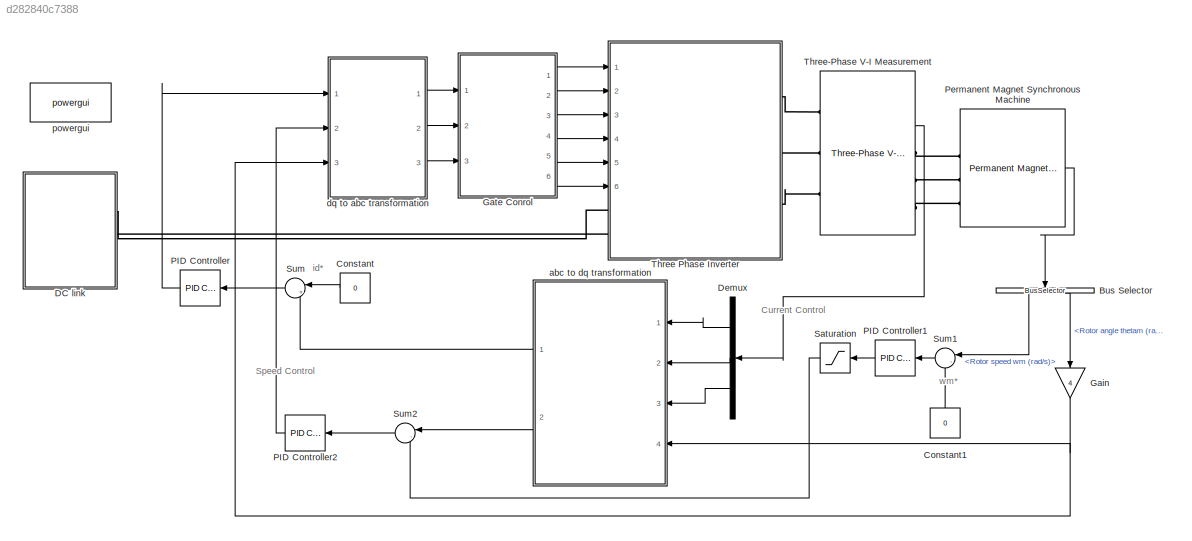
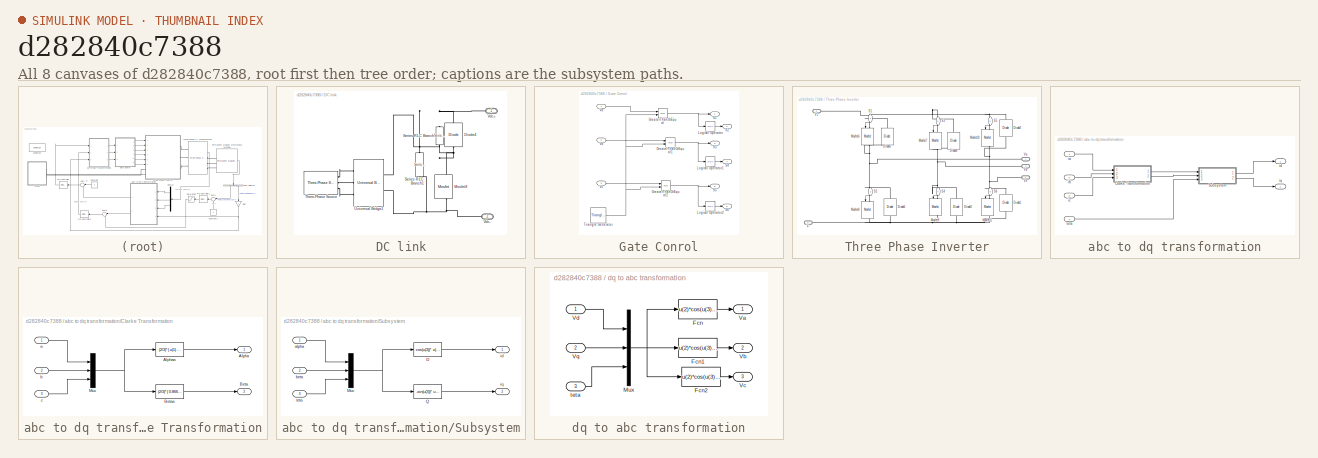
[diagram: thumbnail index - all 8 canvases of the model, root first then tree order]
MODEL slx_d282840c7388
KIND model
CONFIG AbsTol = auto
CONFIG EnableMultiTasking = off
CONFIG FixedStep = auto
CONFIG MaxStep = auto
CONFIG MinStep = auto
CONFIG RelTol = 1e-3
CONFIG SampleTimeConstraint = Unconstrained
CONFIG Solver = VariableStepAuto
CONFIG SolverName = VariableStepAuto
CONFIG StartTime = 0.0
CONFIG StopTime = 10.0
BLOCK [BusSelector] Bus Selector
  OutputAsBus = off
  OutputSignals = Rotor speed wm (rad/s),Rotor angle thetam (rad)
  Ports = [1, 2]
BLOCK [Constant] Constant
  Value = 0
BLOCK [Constant] Constant1
  Value = 0
BLOCK [SubSystem] DC link
  Ports = [0, 0, 0, 0, 0, 0, 2]
  RequestExecContextInheritance = off
BLOCK [Reference] DC link/Diode4  REF=powerlib/Power
Electronics/Diode
  Ports = [0, 0, 0, 0, 0, 1, 1]
  SourceBlock = powerlib/Power\nElectronics/Diode
  SourceProductBaseCode = PS
  SourceProductName = Simscape Power Systems
  SourceType = Diode
BLOCK [Reference] DC link/Mosfet9  REF=powerlib/Power
Electronics/Mosfet
  Ports = [1, 1, 0, 0, 0, 1, 1]
  SourceBlock = powerlib/Power\nElectronics/Mosfet
  SourceProductBaseCode = PS
  SourceProductName = Simscape Power Systems
  SourceType = Mosfet
BLOCK [Reference] DC link/Series RLC Branch  REF=powerlib/Elements/Series RLC Branch
  Ports = [0, 0, 0, 0, 0, 1, 1]
  SourceBlock = powerlib/Elements/Series RLC Branch
  SourceProductBaseCode = PS
  SourceProductName = Simscape Power Systems
  SourceType = Series RLC Branch
BLOCK [Reference] DC link/Series RLC Branch1  REF=powerlib/Elements/Series RLC Branch
  Ports = [0, 0, 0, 0, 0, 1, 1]
  SourceBlock = powerlib/Elements/Series RLC Branch
  SourceProductBaseCode = PS
  SourceProductName = Simscape Power Systems
  SourceType = Series RLC Branch
BLOCK [Reference] DC link/Three-Phase Source  REF=powerlib/Electrical
Sources/Three-Phase Source
  Ports = [0, 0, 0, 0, 0, 0, 3]
  SourceBlock = powerlib/Electrical\nSources/Three-Phase Source
  SourceProductBaseCode = PS
  SourceProductName = Simscape Power Systems
  SourceType = Three-Phase Source
BLOCK [Reference] DC link/Universal Bridge1  REF=powerlib/Power
Electronics/Universal Bridge
  Ports = [0, 0, 0, 0, 0, 3, 2]
  SourceBlock = powerlib/Power\nElectronics/Universal Bridge
  SourceProductBaseCode = PS
  SourceProductName = Simscape Power Systems
  SourceType = Universal Bridge
BLOCK [PMIOPort] DC link/Vdc+
  Side = Right
BLOCK [PMIOPort] DC link/Vdc-
  Port = 2
  Side = Right
BLOCK [Demux] Demux
  DisplayOption = bar
  Outputs = 3
  Ports = [1, 3]
BLOCK [Gain] Gain
  Gain = 4
  OutDataTypeStr = Inherit: Inherit via internal rule
  ParamDataTypeStr = Inherit: Inherit via internal rule
  SaturateOnIntegerOverflow = off
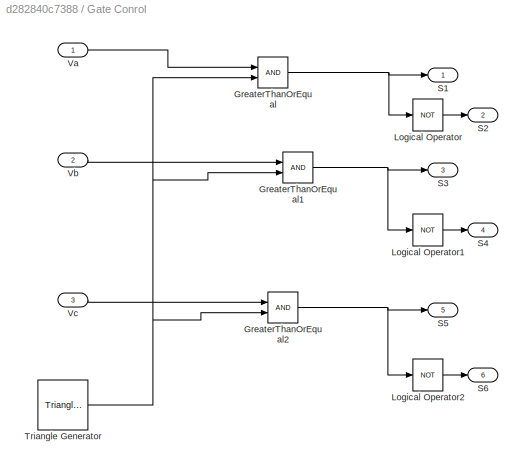
BLOCK [SubSystem] Gate Conrol
  Ports = [3, 6]
  RequestExecContextInheritance = off
BLOCK [RelationalOperator] Gate Conrol/GreaterThanOrEqual
  InputSameDT = off
  OutDataTypeStr = boolean
  Ports = [2, 1]
  RndMeth = Simplest
BLOCK [RelationalOperator] Gate Conrol/GreaterThanOrEqual1
  InputSameDT = off
  OutDataTypeStr = boolean
  Ports = [2, 1]
  RndMeth = Simplest
BLOCK [RelationalOperator] Gate Conrol/GreaterThanOrEqual2
  InputSameDT = off
  OutDataTypeStr = boolean
  Ports = [2, 1]
  RndMeth = Simplest
BLOCK [Logic] Gate Conrol/Logical Operator
  AllPortsSameDT = off
  Operator = NOT
  OutDataTypeStr = boolean
  Ports = [1, 1]
BLOCK [Logic] Gate Conrol/Logical Operator1
  AllPortsSameDT = off
  Operator = NOT
  OutDataTypeStr = boolean
  Ports = [1, 1]
BLOCK [Logic] Gate Conrol/Logical Operator2
  AllPortsSameDT = off
  Operator = NOT
  OutDataTypeStr = boolean
  Ports = [1, 1]
BLOCK [Outport] Gate Conrol/S1
  IconDisplay = Port number
BLOCK [Outport] Gate Conrol/S2
  IconDisplay = Port number
  Port = 2
BLOCK [Outport] Gate Conrol/S3
  IconDisplay = Port number
  Port = 3
BLOCK [Outport] Gate Conrol/S4
  IconDisplay = Port number
  Port = 4
BLOCK [Outport] Gate Conrol/S5
  IconDisplay = Port number
  Port = 5
BLOCK [Outport] Gate Conrol/S6
  IconDisplay = Port number
  Port = 6
BLOCK [Reference] Gate Conrol/Triangle Generator  REF=powerlib_meascontrol/Pulse & Signal
Generators/Triangle
Generator
  Ports = [0, 1]
  SourceBlock = powerlib_meascontrol/Pulse & Signal\nGenerators/Triangle\nGenerator
  SourceProductBaseCode = PS
  SourceProductName = Simscape Power Systems
  SourceType = Triangle Generator
BLOCK [Inport] Gate Conrol/Va
  IconDisplay = Port number
BLOCK [Inport] Gate Conrol/Vb
  IconDisplay = Port number
  Port = 2
BLOCK [Inport] Gate Conrol/Vc
  IconDisplay = Port number
  Port = 3
BLOCK [Reference] PID Controller  REF=simulink/Continuous/PID Controller
  Ports = [1, 1]
  SourceBlock = simulink/Continuous/PID Controller
  SourceProductBaseCode = SL
  SourceProductName = Simulink
  SourceType = PID 1dof
BLOCK [Reference] PID Controller1  REF=simulink/Continuous/PID Controller
  Ports = [1, 1]
  SourceBlock = simulink/Continuous/PID Controller
  SourceProductBaseCode = SL
  SourceProductName = Simulink
  SourceType = PID 1dof
BLOCK [Reference] PID Controller2  REF=simulink/Continuous/PID Controller
  Ports = [1, 1]
  SourceBlock = simulink/Continuous/PID Controller
  SourceProductBaseCode = SL
  SourceProductName = Simulink
  SourceType = PID 1dof
BLOCK [Reference] Permanent Magnet Synchronous Machine  REF=powerlib/Machines/Permanent Magnet
Synchronous Machine
  Ports = [1, 1, 0, 0, 0, 3]
  SourceBlock = powerlib/Machines/Permanent Magnet\nSynchronous Machine
  SourceProductBaseCode = PS
  SourceProductName = Simscape Power Systems
  SourceType = Permanent Magnet Synchronous Machine
BLOCK [Saturate] Saturation
  InputPortMap = u0
  LowerLimit = -250
  Ports = [1, 1]
  UpperLimit = 250
BLOCK [Sum] Sum
  IconShape = round
  InputSameDT = off
  Inputs = |+-
  OutDataTypeStr = Inherit: Inherit via internal rule
  Ports = [2, 1]
  SaturateOnIntegerOverflow = off
BLOCK [Sum] Sum1
  IconShape = round
  InputSameDT = off
  Inputs = |-+
  OutDataTypeStr = Inherit: Inherit via internal rule
  Ports = [2, 1]
  SaturateOnIntegerOverflow = off
BLOCK [Sum] Sum2
  IconShape = round
  InputSameDT = off
  Inputs = |-+
  OutDataTypeStr = Inherit: Inherit via internal rule
  Ports = [2, 1]
  SaturateOnIntegerOverflow = off
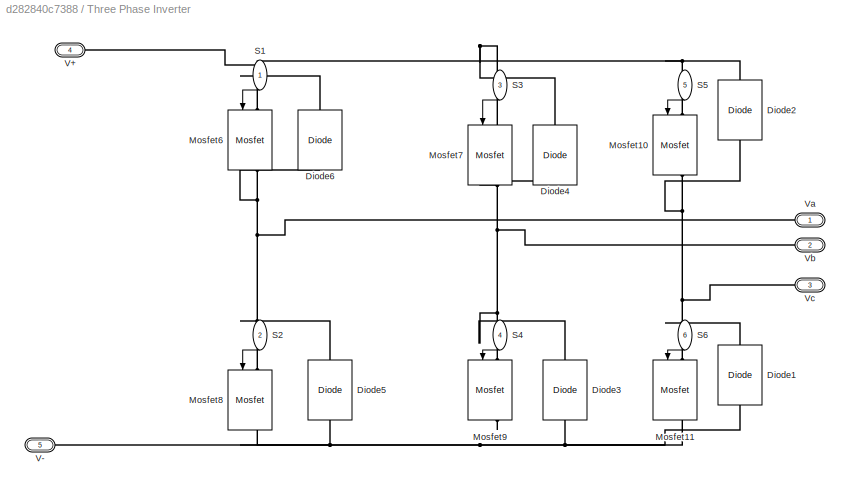
BLOCK [SubSystem] Three Phase Inverter
  Ports = [6, 0, 0, 0, 0, 2, 3]
  RequestExecContextInheritance = off
BLOCK [Reference] Three Phase Inverter/Diode1  REF=powerlib/Power
Electronics/Diode
  Ports = [0, 0, 0, 0, 0, 1, 1]
  SourceBlock = powerlib/Power\nElectronics/Diode
  SourceProductBaseCode = PS
  SourceProductName = Simscape Power Systems
  SourceType = Diode
BLOCK [Reference] Three Phase Inverter/Diode2  REF=powerlib/Power
Electronics/Diode
  Ports = [0, 0, 0, 0, 0, 1, 1]
  SourceBlock = powerlib/Power\nElectronics/Diode
  SourceProductBaseCode = PS
  SourceProductName = Simscape Power Systems
  SourceType = Diode
BLOCK [Reference] Three Phase Inverter/Diode3  REF=powerlib/Power
Electronics/Diode
  Ports = [0, 0, 0, 0, 0, 1, 1]
  SourceBlock = powerlib/Power\nElectronics/Diode
  SourceProductBaseCode = PS
  SourceProductName = Simscape Power Systems
  SourceType = Diode
BLOCK [Reference] Three Phase Inverter/Diode4  REF=powerlib/Power
Electronics/Diode
  Ports = [0, 0, 0, 0, 0, 1, 1]
  SourceBlock = powerlib/Power\nElectronics/Diode
  SourceProductBaseCode = PS
  SourceProductName = Simscape Power Systems
  SourceType = Diode
BLOCK [Reference] Three Phase Inverter/Diode5  REF=powerlib/Power
Electronics/Diode
  Ports = [0, 0, 0, 0, 0, 1, 1]
  SourceBlock = powerlib/Power\nElectronics/Diode
  SourceProductBaseCode = PS
  SourceProductName = Simscape Power Systems
  SourceType = Diode
BLOCK [Reference] Three Phase Inverter/Diode6  REF=powerlib/Power
Electronics/Diode
  Ports = [0, 0, 0, 0, 0, 1, 1]
  SourceBlock = powerlib/Power\nElectronics/Diode
  SourceProductBaseCode = PS
  SourceProductName = Simscape Power Systems
  SourceType = Diode
BLOCK [Reference] Three Phase Inverter/Mosfet10  REF=powerlib/Power
Electronics/Mosfet
  Ports = [1, 1, 0, 0, 0, 1, 1]
  SourceBlock = powerlib/Power\nElectronics/Mosfet
  SourceProductBaseCode = PS
  SourceProductName = Simscape Power Systems
  SourceType = Mosfet
BLOCK [Reference] Three Phase Inverter/Mosfet11  REF=powerlib/Power
Electronics/Mosfet
  Ports = [1, 1, 0, 0, 0, 1, 1]
  SourceBlock = powerlib/Power\nElectronics/Mosfet
  SourceProductBaseCode = PS
  SourceProductName = Simscape Power Systems
  SourceType = Mosfet
BLOCK [Reference] Three Phase Inverter/Mosfet6  REF=powerlib/Power
Electronics/Mosfet
  Ports = [1, 1, 0, 0, 0, 1, 1]
  SourceBlock = powerlib/Power\nElectronics/Mosfet
  SourceProductBaseCode = PS
  SourceProductName = Simscape Power Systems
  SourceType = Mosfet
BLOCK [Reference] Three Phase Inverter/Mosfet7  REF=powerlib/Power
Electronics/Mosfet
  Ports = [1, 1, 0, 0, 0, 1, 1]
  SourceBlock = powerlib/Power\nElectronics/Mosfet
  SourceProductBaseCode = PS
  SourceProductName = Simscape Power Systems
  SourceType = Mosfet
BLOCK [Reference] Three Phase Inverter/Mosfet8  REF=powerlib/Power
Electronics/Mosfet
  Ports = [1, 1, 0, 0, 0, 1, 1]
  SourceBlock = powerlib/Power\nElectronics/Mosfet
  SourceProductBaseCode = PS
  SourceProductName = Simscape Power Systems
  SourceType = Mosfet
BLOCK [Reference] Three Phase Inverter/Mosfet9  REF=powerlib/Power
Electronics/Mosfet
  Ports = [1, 1, 0, 0, 0, 1, 1]
  SourceBlock = powerlib/Power\nElectronics/Mosfet
  SourceProductBaseCode = PS
  SourceProductName = Simscape Power Systems
  SourceType = Mosfet
BLOCK [Inport] Three Phase Inverter/S1
  IconDisplay = Port number
BLOCK [Inport] Three Phase Inverter/S2
  IconDisplay = Port number
  Port = 2
BLOCK [Inport] Three Phase Inverter/S3
  IconDisplay = Port number
  Port = 3
BLOCK [Inport] Three Phase Inverter/S4
  IconDisplay = Port number
  Port = 4
BLOCK [Inport] Three Phase Inverter/S5
  IconDisplay = Port number
  Port = 5
BLOCK [Inport] Three Phase Inverter/S6
  IconDisplay = Port number
  Port = 6
BLOCK [PMIOPort] Three Phase Inverter/V+
  Port = 4
  Side = Left
BLOCK [PMIOPort] Three Phase Inverter/V-
  Port = 5
  Side = Left
BLOCK [PMIOPort] Three Phase Inverter/Va
  Side = Right
BLOCK [PMIOPort] Three Phase Inverter/Vb
  Port = 2
  Side = Right
BLOCK [PMIOPort] Three Phase Inverter/Vc
  Port = 3
  Side = Right
BLOCK [Reference] Three-Phase V-I Measurement  REF=powerlib/Measurements/Three-Phase
V-I Measurement
  Ports = [0, 2, 0, 0, 0, 3, 3]
  SourceBlock = powerlib/Measurements/Three-Phase\nV-I Measurement
  SourceProductBaseCode = PS
  SourceProductName = Simscape Power Systems
  SourceType = Three-Phase VI Measurement
BLOCK [SubSystem] abc to dq transformation
  Ports = [4, 2]
  RequestExecContextInheritance = off
BLOCK [SubSystem] abc to dq transformation/Clarke Transformation
  Ports = [3, 2]
  RequestExecContextInheritance = off
BLOCK [Outport] abc to dq transformation/Clarke Transformation/Alpha
  IconDisplay = Port number
BLOCK [Fcn] abc to dq transformation/Clarke Transformation/Alphaa
  Expr = (2/3)*( u(1) -0.5*u(2) - 0.5*u(3))
BLOCK [Outport] abc to dq transformation/Clarke Transformation/Beta
  IconDisplay = Port number
  Port = 2
BLOCK [Fcn] abc to dq transformation/Clarke Transformation/Betaa
  Expr = (2/3)*( 0.866*u(2) - 0.866*u(3))
BLOCK [Mux] abc to dq transformation/Clarke Transformation/Mux
  DisplayOption = bar
  Inputs = 3
  Ports = [3, 1]
BLOCK [Inport] abc to dq transformation/Clarke Transformation/a
  IconDisplay = Port number
BLOCK [Inport] abc to dq transformation/Clarke Transformation/b
  IconDisplay = Port number
  Port = 2
BLOCK [Inport] abc to dq transformation/Clarke Transformation/c
  IconDisplay = Port number
  Port = 3
BLOCK [SubSystem] abc to dq transformation/Subsystem
  Ports = [3, 2]
  RequestExecContextInheritance = off
BLOCK [Fcn] abc to dq transformation/Subsystem/D
  Expr = cos(u(3))* u(1) + sin(u(3))* u(2)
BLOCK [Mux] abc to dq transformation/Subsystem/Mux
  DisplayOption = bar
  Inputs = 3
  Ports = [3, 1]
BLOCK [Fcn] abc to dq transformation/Subsystem/Q
  Expr = -sin(u(3))* u(1) + cos(u(3))* u(2)
BLOCK [Inport] abc to dq transformation/Subsystem/alpha
  IconDisplay = Port number
BLOCK [Inport] abc to dq transformation/Subsystem/beta
  IconDisplay = Port number
  Port = 2
BLOCK [Outport] abc to dq transformation/Subsystem/id
  IconDisplay = Port number
BLOCK [Outport] abc to dq transformation/Subsystem/iq
  IconDisplay = Port number
  Port = 2
BLOCK [Inport] abc to dq transformation/Subsystem/teta
  IconDisplay = Port number
  Port = 3
BLOCK [Inport] abc to dq transformation/ia
  IconDisplay = Port number
BLOCK [Inport] abc to dq transformation/ib
  IconDisplay = Port number
  Port = 2
BLOCK [Inport] abc to dq transformation/ic
  IconDisplay = Port number
  Port = 3
BLOCK [Outport] abc to dq transformation/id
  IconDisplay = Port number
BLOCK [Outport] abc to dq transformation/iq
  IconDisplay = Port number
  Port = 2
BLOCK [Inport] abc to dq transformation/teta
  IconDisplay = Port number
  Port = 4
BLOCK [SubSystem] dq to abc transformation
  Ports = [3, 3]
  RequestExecContextInheritance = off
BLOCK [Fcn] dq to abc transformation/Fcn
  Expr = u(2)*cos(u(3))-u(1)*sin(u(3))
BLOCK [Fcn] dq to abc transformation/Fcn1
  Expr = u(2)*cos(u(3)-2*pi/3)-u(1)*sin(u(3)-2*pi/3)
BLOCK [Fcn] dq to abc transformation/Fcn2
  Expr = u(2)*cos(u(3)+2*pi/3)-u(1)*sin(u(3)+2*pi/3)
BLOCK [Mux] dq to abc transformation/Mux
  DisplayOption = bar
  Inputs = 3
  Ports = [3, 1]
BLOCK [Outport] dq to abc transformation/Va
  IconDisplay = Port number
BLOCK [Outport] dq to abc transformation/Vb
  IconDisplay = Port number
  Port = 2
BLOCK [Outport] dq to abc transformation/Vc
  IconDisplay = Port number
  Port = 3
BLOCK [Inport] dq to abc transformation/Vd
  IconDisplay = Port number
BLOCK [Inport] dq to abc transformation/Vq
  IconDisplay = Port number
  Port = 2
BLOCK [Inport] dq to abc transformation/teta 
  IconDisplay = Port number
  Port = 3
BLOCK [Reference] powergui  REF=powerlib/powergui
  Ports = []
  Priority = 1
  SourceBlock = powerlib/powergui
  SourceProductBaseCode = PS
  SourceProductName = Simscape Power Systems
  SourceType = PSB option menu block
ANNOTATION (root): Current Control
ANNOTATION (root): Speed Control
ANNOTATION (root): id*
ANNOTATION (root): wm*
LINE Bus Selector:1 -> Sum1:1
LINE Bus Selector:2 -> Gain:1
LINE Constant1:1 -> Sum1:2
LINE Constant:1 -> Sum:1
LINE Demux:1 -> abc to dq transformation:1
LINE Demux:2 -> abc to dq transformation:2
LINE Demux:3 -> abc to dq transformation:3
NET Gain:1 -> abc to dq transformation:4, dq to abc transformation:3
NET Gate Conrol/GreaterThanOrEqual1:1 -> Gate Conrol/Logical Operator1:1, Gate Conrol/S3:1
NET Gate Conrol/GreaterThanOrEqual2:1 -> Gate Conrol/Logical Operator2:1, Gate Conrol/S5:1
NET Gate Conrol/GreaterThanOrEqual:1 -> Gate Conrol/Logical Operator:1, Gate Conrol/S1:1
LINE Gate Conrol/Logical Operator1:1 -> Gate Conrol/S4:1
LINE Gate Conrol/Logical Operator2:1 -> Gate Conrol/S6:1
LINE Gate Conrol/Logical Operator:1 -> Gate Conrol/S2:1
NET Gate Conrol/Triangle Generator:1 -> Gate Conrol/GreaterThanOrEqual1:2, Gate Conrol/GreaterThanOrEqual2:2, Gate Conrol/GreaterThanOrEqual:2
LINE Gate Conrol/Va:1 -> Gate Conrol/GreaterThanOrEqual:1
LINE Gate Conrol/Vb:1 -> Gate Conrol/GreaterThanOrEqual1:1
LINE Gate Conrol/Vc:1 -> Gate Conrol/GreaterThanOrEqual2:1
LINE Gate Conrol:1 -> Three Phase Inverter:1
LINE Gate Conrol:2 -> Three Phase Inverter:2
LINE Gate Conrol:3 -> Three Phase Inverter:3
LINE Gate Conrol:4 -> Three Phase Inverter:4
LINE Gate Conrol:5 -> Three Phase Inverter:5
LINE Gate Conrol:6 -> Three Phase Inverter:6
LINE PID Controller1:1 -> Saturation:1
LINE PID Controller2:1 -> dq to abc transformation:2
LINE PID Controller:1 -> dq to abc transformation:1
LINE Permanent Magnet Synchronous Machine:1 -> Bus Selector:1
LINE Saturation:1 -> Sum2:2
LINE Sum1:1 -> PID Controller1:1
LINE Sum2:1 -> PID Controller2:1
LINE Sum:1 -> PID Controller:1
LINE Three Phase Inverter/S1:1 -> Three Phase Inverter/Mosfet6:1
LINE Three Phase Inverter/S2:1 -> Three Phase Inverter/Mosfet8:1
LINE Three Phase Inverter/S3:1 -> Three Phase Inverter/Mosfet7:1
LINE Three Phase Inverter/S4:1 -> Three Phase Inverter/Mosfet9:1
LINE Three Phase Inverter/S5:1 -> Three Phase Inverter/Mosfet10:1
LINE Three Phase Inverter/S6:1 -> Three Phase Inverter/Mosfet11:1
LINE Three-Phase V-I Measurement:2 -> Demux:1
LINE abc to dq transformation/Clarke Transformation/Alphaa:1 -> abc to dq transformation/Clarke Transformation/Alpha:1
LINE abc to dq transformation/Clarke Transformation/Betaa:1 -> abc to dq transformation/Clarke Transformation/Beta:1
NET abc to dq transformation/Clarke Transformation/Mux:1 -> abc to dq transformation/Clarke Transformation/Alphaa:1, abc to dq transformation/Clarke Transformation/Betaa:1
LINE abc to dq transformation/Clarke Transformation/a:1 -> abc to dq transformation/Clarke Transformation/Mux:1
LINE abc to dq transformation/Clarke Transformation/b:1 -> abc to dq transformation/Clarke Transformation/Mux:2
LINE abc to dq transformation/Clarke Transformation/c:1 -> abc to dq transformation/Clarke Transformation/Mux:3
LINE abc to dq transformation/Clarke Transformation:1 -> abc to dq transformation/Subsystem:1
LINE abc to dq transformation/Clarke Transformation:2 -> abc to dq transformation/Subsystem:2
LINE abc to dq transformation/Subsystem/D:1 -> abc to dq transformation/Subsystem/id:1
NET abc to dq transformation/Subsystem/Mux:1 -> abc to dq transformation/Subsystem/D:1, abc to dq transformation/Subsystem/Q:1
LINE abc to dq transformation/Subsystem/Q:1 -> abc to dq transformation/Subsystem/iq:1
LINE abc to dq transformation/Subsystem/alpha:1 -> abc to dq transformation/Subsystem/Mux:1
LINE abc to dq transformation/Subsystem/beta:1 -> abc to dq transformation/Subsystem/Mux:2
LINE abc to dq transformation/Subsystem/teta:1 -> abc to dq transformation/Subsystem/Mux:3
LINE abc to dq transformation/Subsystem:1 -> abc to dq transformation/id:1
LINE abc to dq transformation/Subsystem:2 -> abc to dq transformation/iq:1
LINE abc to dq transformation/ia:1 -> abc to dq transformation/Clarke Transformation:1
LINE abc to dq transformation/ib:1 -> abc to dq transformation/Clarke Transformation:2
LINE abc to dq transformation/ic:1 -> abc to dq transformation/Clarke Transformation:3
LINE abc to dq transformation/teta:1 -> abc to dq transformation/Subsystem:3
LINE abc to dq transformation:1 -> Sum:2
LINE abc to dq transformation:2 -> Sum2:1
LINE dq to abc transformation/Fcn1:1 -> dq to abc transformation/Vb:1
LINE dq to abc transformation/Fcn2:1 -> dq to abc transformation/Vc:1
LINE dq to abc transformation/Fcn:1 -> dq to abc transformation/Va:1
NET dq to abc transformation/Mux:1 -> dq to abc transformation/Fcn1:1, dq to abc transformation/Fcn2:1, dq to abc transformation/Fcn:1
LINE dq to abc transformation/Vd:1 -> dq to abc transformation/Mux:1
LINE dq to abc transformation/Vq:1 -> dq to abc transformation/Mux:2
LINE dq to abc transformation/teta :1 -> dq to abc transformation/Mux:3
LINE dq to abc transformation:1 -> Gate Conrol:1
LINE dq to abc transformation:2 -> Gate Conrol:2
LINE dq to abc transformation:3 -> Gate Conrol:3
PNET net1: DC link/Diode4:LConn1 -- DC link/Mosfet9:LConn1 -- DC link/Series RLC Branch:RConn1
PNET net2: DC link/Diode4:RConn1 -- DC link/Series RLC Branch1:LConn1 -- DC link/Series RLC Branch:LConn1 -- DC link/Universal Bridge1:RConn1 -- DC link/Vdc+:RConn1
PNET net3: DC link/Mosfet9:RConn1 -- DC link/Series RLC Branch1:RConn1 -- DC link/Universal Bridge1:RConn2 -- DC link/Vdc-:RConn1
PLINE DC link/Three-Phase Source:RConn1 -- DC link/Universal Bridge1:LConn1
PLINE DC link/Three-Phase Source:RConn2 -- DC link/Universal Bridge1:LConn2
PLINE DC link/Three-Phase Source:RConn3 -- DC link/Universal Bridge1:LConn3
PLINE DC link:RConn1 -- Three Phase Inverter:LConn1
PLINE DC link:RConn2 -- Three Phase Inverter:LConn2
PLINE Permanent Magnet Synchronous Machine:LConn1 -- Three-Phase V-I Measurement:RConn1
PLINE Permanent Magnet Synchronous Machine:LConn2 -- Three-Phase V-I Measurement:RConn2
PLINE Permanent Magnet Synchronous Machine:LConn3 -- Three-Phase V-I Measurement:RConn3
PNET net4: Three Phase Inverter/Diode1:LConn1 -- Three Phase Inverter/Diode3:LConn1 -- Three Phase Inverter/Diode5:LConn1 -- Three Phase Inverter/Mosfet11:RConn1 -- Three Phase Inverter/Mosfet8:RConn1 -- Three Phase Inverter/Mosfet9:RConn1 -- Three Phase Inverter/V-:RConn1
PNET net5: Three Phase Inverter/Diode1:RConn1 -- Three Phase Inverter/Diode2:LConn1 -- Three Phase Inverter/Mosfet10:RConn1 -- Three Phase Inverter/Mosfet11:LConn1 -- Three Phase Inverter/Vc:RConn1
PNET net6: Three Phase Inverter/Diode2:RConn1 -- Three Phase Inverter/Diode4:RConn1 -- Three Phase Inverter/Diode6:RConn1 -- Three Phase Inverter/Mosfet10:LConn1 -- Three Phase Inverter/Mosfet6:LConn1 -- Three Phase Inverter/Mosfet7:LConn1 -- Three Phase Inverter/V+:RConn1
PNET net7: Three Phase Inverter/Diode3:RConn1 -- Three Phase Inverter/Diode4:LConn1 -- Three Phase Inverter/Mosfet7:RConn1 -- Three Phase Inverter/Mosfet9:LConn1 -- Three Phase Inverter/Vb:RConn1
PNET net8: Three Phase Inverter/Diode5:RConn1 -- Three Phase Inverter/Diode6:LConn1 -- Three Phase Inverter/Mosfet6:RConn1 -- Three Phase Inverter/Mosfet8:LConn1 -- Three Phase Inverter/Va:RConn1
PLINE Three Phase Inverter:RConn1 -- Three-Phase V-I Measurement:LConn1
PLINE Three Phase Inverter:RConn2 -- Three-Phase V-I Measurement:LConn2
PLINE Three Phase Inverter:RConn3 -- Three-Phase V-I Measurement:LConn3
note: NET lines group one-source signal fan-out (src -> all destinations, sorted); 1:1 wires keep LINE; PNET lines group multi-terminal physical nets as a canonical sorted terminal list (undirected conserving connections); 2-terminal nets keep the pairwise PLINE form
